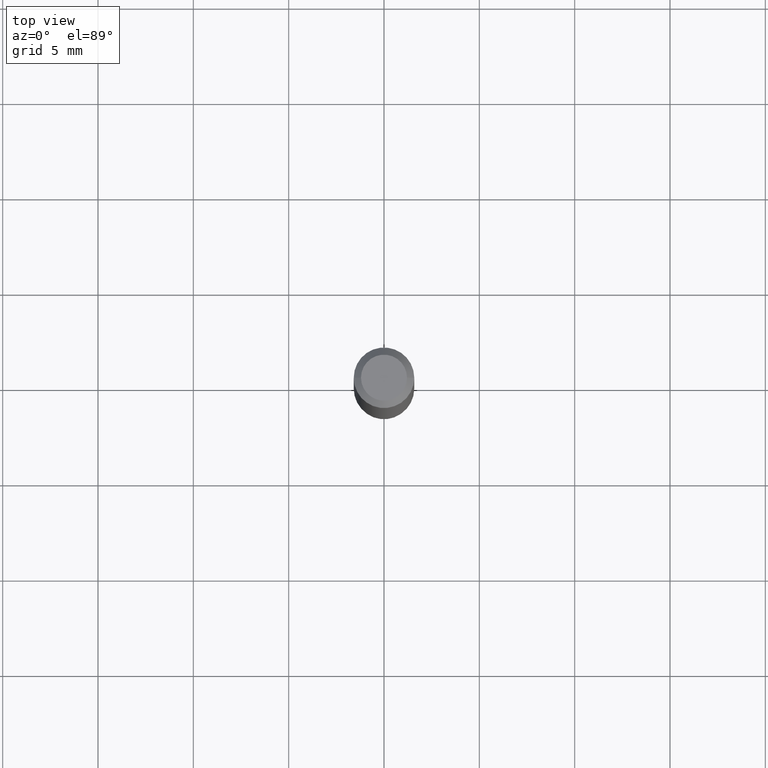
[diagram: clean part render]
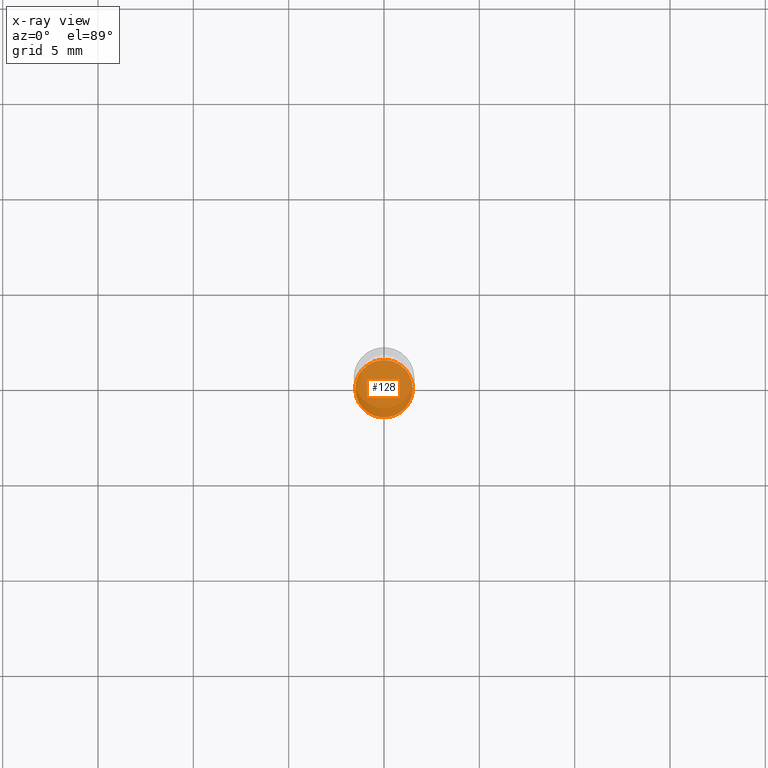
[diagram: x-ray — body ghosted, one internal face saturated and labeled with its STEP entity id]
A machine part, top view, then the same camera in x-ray: the body is ghosted and one INTERNAL B-rep face — a face not visible from any outside direction — is saturated and labeled: STEP entity #128.
In plain terms, the highlighted planar face has unit normal (-0, 0, 1).
Its self-contained STEP definition (entity closure, byte-faithful):
#16 = DIRECTION ( 'NONE',  ( 1.000000000000000000, -6.982962677686273810E-15, 0.000000000000000000 ) ) ;
#120 = FACE_OUTER_BOUND ( 'NONE', #244, .T. ) ;
#126 = DIRECTION ( 'NONE',  ( -2.438088387897960049E-29, 3.491481338843145188E-15, 1.000000000000000000 ) ) ;
#128 = ADVANCED_FACE ( 'NONE', ( #120 ), #435, .F. ) ;
#130 = AXIS2_PLACEMENT_3D ( 'NONE', #175, #287, #447 ) ;
#171 = CARTESIAN_POINT ( 'NONE',  ( 3.228018824164380442E-29, -4.608755367272952437E-15, -1.320000000000000062 ) ) ;
#175 = CARTESIAN_POINT ( 'NONE',  ( 3.228018824164380442E-29, -4.608755367272952437E-15, -1.320000000000000062 ) ) ;
#214 = VERTEX_POINT ( 'NONE', #277 ) ;
#226 = ORIENTED_EDGE ( 'NONE', *, *, #406, .F. ) ;
#244 = EDGE_LOOP ( 'NONE', ( #226, #372 ) ) ;
#264 = CIRCLE ( 'NONE', #446, 0.05950000000000001815 ) ;
#273 = AXIS2_PLACEMENT_3D ( 'NONE', #285, #126, #322 ) ;
#277 = CARTESIAN_POINT ( 'NONE',  ( -0.05950000000000001815, -4.183333212321581645E-15, -1.320000000000000062 ) ) ;
#285 = CARTESIAN_POINT ( 'NONE',  ( 3.228018824164380442E-29, -4.608755367272952437E-15, -1.320000000000000062 ) ) ;
#287 = DIRECTION ( 'NONE',  ( -2.445468806185136597E-29, 3.491481338843145583E-15, 1.000000000000000000 ) ) ;
#310 = CIRCLE ( 'NONE', #130, 0.05950000000000001815 ) ;
#322 = DIRECTION ( 'NONE',  ( 1.000000000000000000, -6.982962677686265922E-15, 4.876176775795935793E-29 ) ) ;
#326 = EDGE_CURVE ( 'NONE', #214, #414, #264, .T. ) ;
#371 = DIRECTION ( 'NONE',  ( -2.445468806185136597E-29, 3.491481338843145583E-15, 1.000000000000000000 ) ) ;
#372 = ORIENTED_EDGE ( 'NONE', *, *, #326, .F. ) ;
#406 = EDGE_CURVE ( 'NONE', #414, #214, #310, .T. ) ;
#407 = CARTESIAN_POINT ( 'NONE',  ( 0.05950000000000001815, -5.024241646595286064E-15, -1.320000000000000062 ) ) ;
#414 = VERTEX_POINT ( 'NONE', #407 ) ;
#435 = PLANE ( 'NONE',  #273 ) ;
#446 = AXIS2_PLACEMENT_3D ( 'NONE', #171, #371, #16 ) ;
#447 = DIRECTION ( 'NONE',  ( 1.000000000000000000, -6.982962677686273810E-15, 0.000000000000000000 ) ) ;